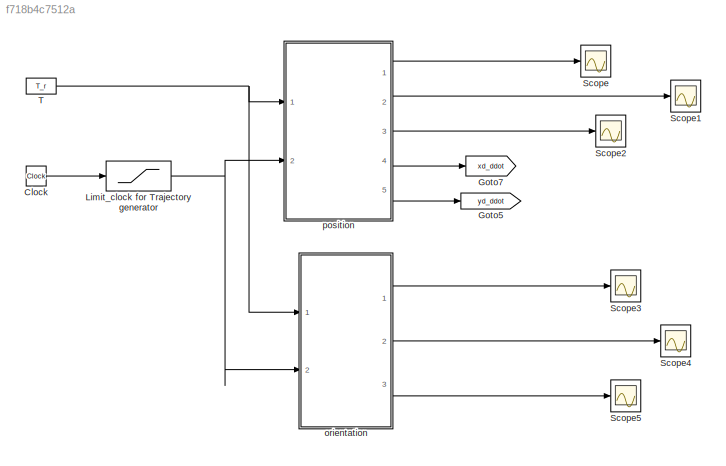
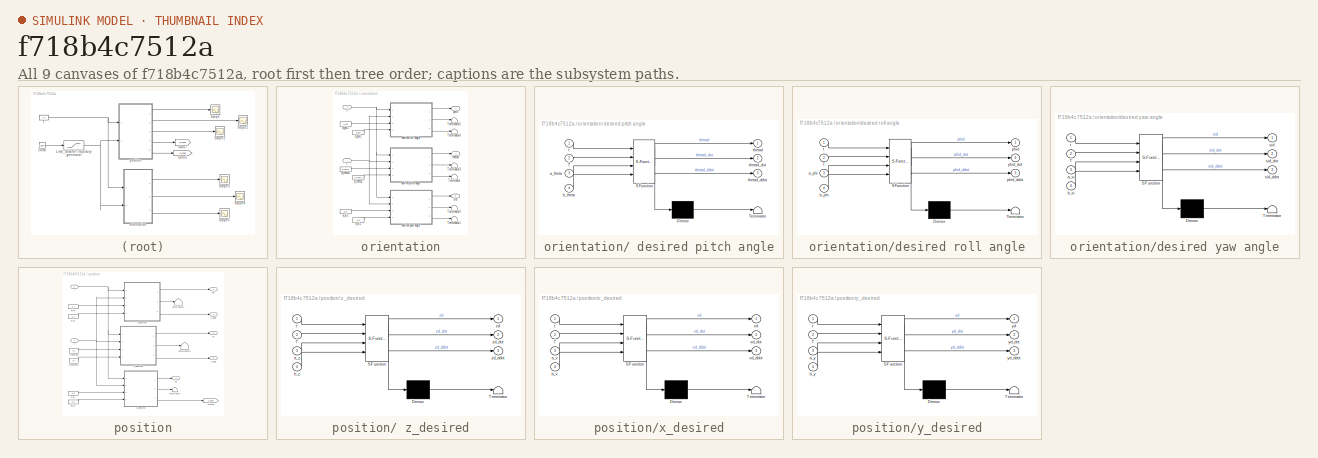
[diagram: thumbnail index - all 9 canvases of the model, root first then tree order]
MODEL slx_f718b4c7512a
KIND model
CONFIG AbsTol = auto
CONFIG EnableMultiTasking = off
CONFIG FixedStep = auto
CONFIG MaxStep = auto
CONFIG MinStep = auto
CONFIG RelTol = 1e-3
CONFIG SampleTimeConstraint = Unconstrained
CONFIG SolverName = VariableStepAuto
CONFIG StartTime = 0.0
CONFIG StopTime = T_s
BLOCK [Clock] Clock
BLOCK [Goto] Goto5
  GotoTag = yd_ddot
  TagVisibility = global
BLOCK [Goto] Goto7
  GotoTag = xd_ddot
  TagVisibility = global
BLOCK [Saturate] Limit_clock for Trajectory generator
  LowerLimit = 0
  UpperLimit = T_s
BLOCK [Scope] Scope
  Floating = off
  NumInputPorts = 1
  Ports = [1]
  ScopeSpecificationString = Simulink.scopes.TimeScopeBlockCfg('CurrentConfiguration', extmgr.ConfigurationSet(extmgr.Configuration('Core','General UI',true),extmgr.Configuration('Core','Source UI',true),extmgr.Configuration('Sources','WiredSimulink',true),extmgr.Configuration('Visuals','Time Domain',true,'SerializedDisplays',{struct('MinYLimReal','-0.25','MaxYLimReal','2.25','YLabelReal','','MinYLimMag','0.00000','MaxYLimMag...<+1313ch>
BLOCK [Scope] Scope1
  Floating = off
  NumInputPorts = 1
  Ports = [1]
  ScopeSpecificationString = Simulink.scopes.TimeScopeBlockCfg('CurrentConfiguration', extmgr.ConfigurationSet(extmgr.Configuration('Core','General UI',true),extmgr.Configuration('Core','Source UI',true),extmgr.Configuration('Sources','WiredSimulink',true,'DataLoggingVariableName','ScopeData1'),extmgr.Configuration('Visuals','Time Domain',true,'SerializedDisplays',{struct('MinYLimReal','-0.25','MaxYLimReal','2.25','YLabelReal...<+1387ch>
BLOCK [Scope] Scope2
  Floating = off
  NumInputPorts = 1
  Ports = [1]
  ScopeSpecificationString = Simulink.scopes.TimeScopeBlockCfg('CurrentConfiguration', extmgr.ConfigurationSet(extmgr.Configuration('Core','General UI',true),extmgr.Configuration('Core','Source UI',true),extmgr.Configuration('Sources','WiredSimulink',true,'DataLoggingVariableName','ScopeData2'),extmgr.Configuration('Visuals','Time Domain',true,'SerializedDisplays',{struct('MinYLimReal','-1.25','MaxYLimReal','11.25','YLabelRea...<+1391ch>
BLOCK [Scope] Scope3
  Floating = off
  NumInputPorts = 1
  Ports = [1]
  ScopeSpecificationString = Simulink.scopes.TimeScopeBlockCfg('CurrentConfiguration', extmgr.ConfigurationSet(extmgr.Configuration('Core','General UI',true),extmgr.Configuration('Core','Source UI',true),extmgr.Configuration('Sources','WiredSimulink',true,'DataLoggingVariableName','ScopeData3'),extmgr.Configuration('Visuals','Time Domain',true),extmgr.Configuration('Tools','Plot Navigation',true),extmgr.Configuration('Tools',...<+40ch>
BLOCK [Scope] Scope4
  Floating = off
  NumInputPorts = 1
  Ports = [1]
  ScopeSpecificationString = Simulink.scopes.TimeScopeBlockCfg('CurrentConfiguration', extmgr.ConfigurationSet(extmgr.Configuration('Core','General UI',true),extmgr.Configuration('Core','Source UI',true),extmgr.Configuration('Sources','WiredSimulink',true,'DataLoggingVariableName','ScopeData4'),extmgr.Configuration('Visuals','Time Domain',true),extmgr.Configuration('Tools','Plot Navigation',true),extmgr.Configuration('Tools',...<+40ch>
BLOCK [Scope] Scope5
  Floating = off
  NumInputPorts = 1
  Ports = [1]
  ScopeSpecificationString = Simulink.scopes.TimeScopeBlockCfg('CurrentConfiguration', extmgr.ConfigurationSet(extmgr.Configuration('Core','General UI',true),extmgr.Configuration('Core','Source UI',true),extmgr.Configuration('Sources','WiredSimulink',true,'DataLoggingVariableName','ScopeData5'),extmgr.Configuration('Visuals','Time Domain',true),extmgr.Configuration('Tools','Plot Navigation',true),extmgr.Configuration('Tools',...<+40ch>
BLOCK [Constant] T
  Value = T_r
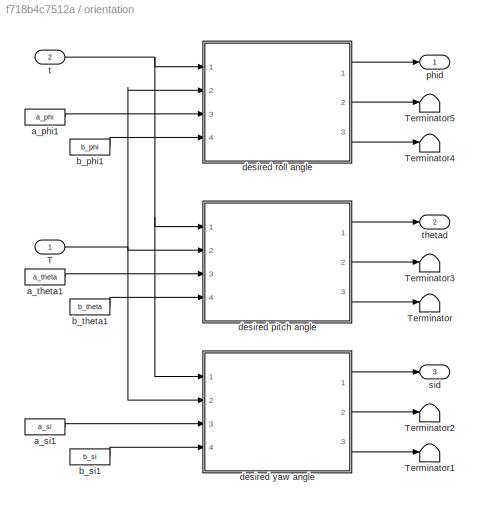
BLOCK [SubSystem] orientation
  Ports = [2, 3]
  RequestExecContextInheritance = off
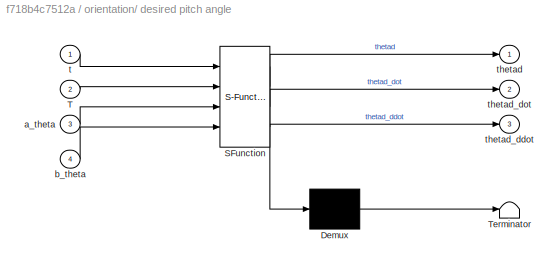
BLOCK [SubSystem] orientation/ desired pitch angle
  ErrorFcn = Stateflow.Translate.translate
  PermitHierarchicalResolution = ExplicitOnly
  Ports = [4, 3]
  RequestExecContextInheritance = off
  SFBlockType = MATLAB Function
  TreatAsAtomicUnit = on
BLOCK [Demux] orientation/ desired pitch angle/ Demux 
  Outputs = 1
  Ports = [1, 1]
BLOCK [S-Function] orientation/ desired pitch angle/ SFunction 
  EnableBusSupport = on
  FunctionName = sf_sfun
  PortCounts = [4 4]
  Ports = [4, 4]
  SFcnIsStateOwnerBlock = off
  SFunctionDeploymentMode = off
  Tag = Stateflow S-Function 3
BLOCK [Terminator] orientation/ desired pitch angle/ Terminator 
BLOCK [Inport] orientation/ desired pitch angle/T
  Port = 2
BLOCK [Inport] orientation/ desired pitch angle/a_theta
  Port = 3
BLOCK [Inport] orientation/ desired pitch angle/b_theta
  Port = 4
BLOCK [Inport] orientation/ desired pitch angle/t
BLOCK [Outport] orientation/ desired pitch angle/thetad
BLOCK [Outport] orientation/ desired pitch angle/thetad_ddot
  Port = 3
BLOCK [Outport] orientation/ desired pitch angle/thetad_dot
  Port = 2
BLOCK [Inport] orientation/T
BLOCK [Terminator] orientation/Terminator
BLOCK [Terminator] orientation/Terminator1
BLOCK [Terminator] orientation/Terminator2
BLOCK [Terminator] orientation/Terminator3
BLOCK [Terminator] orientation/Terminator4
BLOCK [Terminator] orientation/Terminator5
BLOCK [Constant] orientation/a_phi1
  Value = a_phi
BLOCK [Constant] orientation/a_si1
  Value = a_si
BLOCK [Constant] orientation/a_theta1
  Value = a_theta
BLOCK [Constant] orientation/b_phi1
  Value = b_phi
BLOCK [Constant] orientation/b_si1
  Value = b_si
BLOCK [Constant] orientation/b_theta1
  Value = b_theta
BLOCK [SubSystem] orientation/desired roll angle
  ErrorFcn = Stateflow.Translate.translate
  PermitHierarchicalResolution = ExplicitOnly
  Ports = [4, 3]
  RequestExecContextInheritance = off
  SFBlockType = MATLAB Function
  TreatAsAtomicUnit = on
BLOCK [Demux] orientation/desired roll angle/ Demux 
  Outputs = 1
  Ports = [1, 1]
BLOCK [S-Function] orientation/desired roll angle/ SFunction 
  EnableBusSupport = on
  FunctionName = sf_sfun
  PortCounts = [4 4]
  Ports = [4, 4]
  SFcnIsStateOwnerBlock = off
  SFunctionDeploymentMode = off
  Tag = Stateflow S-Function 4
BLOCK [Terminator] orientation/desired roll angle/ Terminator 
BLOCK [Inport] orientation/desired roll angle/T
  Port = 2
BLOCK [Inport] orientation/desired roll angle/a_phi
  Port = 3
BLOCK [Inport] orientation/desired roll angle/b_phi
  Port = 4
BLOCK [Outport] orientation/desired roll angle/phid
BLOCK [Outport] orientation/desired roll angle/phid_ddot
  Port = 3
BLOCK [Outport] orientation/desired roll angle/phid_dot
  Port = 2
BLOCK [Inport] orientation/desired roll angle/t
BLOCK [SubSystem] orientation/desired yaw angle
  ErrorFcn = Stateflow.Translate.translate
  PermitHierarchicalResolution = ExplicitOnly
  Ports = [4, 3]
  RequestExecContextInheritance = off
  SFBlockType = MATLAB Function
  TreatAsAtomicUnit = on
BLOCK [Demux] orientation/desired yaw angle/ Demux 
  Outputs = 1
  Ports = [1, 1]
BLOCK [S-Function] orientation/desired yaw angle/ SFunction 
  EnableBusSupport = on
  FunctionName = sf_sfun
  PortCounts = [4 4]
  Ports = [4, 4]
  SFcnIsStateOwnerBlock = off
  SFunctionDeploymentMode = off
  Tag = Stateflow S-Function 9
BLOCK [Terminator] orientation/desired yaw angle/ Terminator 
BLOCK [Inport] orientation/desired yaw angle/T
  Port = 2
BLOCK [Inport] orientation/desired yaw angle/a_si
  Port = 3
BLOCK [Inport] orientation/desired yaw angle/b_si
  Port = 4
BLOCK [Outport] orientation/desired yaw angle/sid
BLOCK [Outport] orientation/desired yaw angle/sid_ddot
  Port = 3
BLOCK [Outport] orientation/desired yaw angle/sid_dot
  Port = 2
BLOCK [Inport] orientation/desired yaw angle/t
BLOCK [Outport] orientation/phid
BLOCK [Outport] orientation/sid
  Port = 3
BLOCK [Inport] orientation/t
  Port = 2
BLOCK [Outport] orientation/thetad
  Port = 2
BLOCK [SubSystem] position
  Ports = [2, 5]
  RequestExecContextInheritance = off
BLOCK [SubSystem] position/ z_desired
  ErrorFcn = Stateflow.Translate.translate
  PermitHierarchicalResolution = ExplicitOnly
  Ports = [4, 3]
  RequestExecContextInheritance = off
  SFBlockType = MATLAB Function
  TreatAsAtomicUnit = on
BLOCK [Demux] position/ z_desired/ Demux 
  Outputs = 1
  Ports = [1, 1]
BLOCK [S-Function] position/ z_desired/ SFunction 
  EnableBusSupport = on
  FunctionName = sf_sfun
  PortCounts = [4 4]
  Ports = [4, 4]
  SFcnIsStateOwnerBlock = off
  SFunctionDeploymentMode = off
  Tag = Stateflow S-Function 10
BLOCK [Terminator] position/ z_desired/ Terminator 
BLOCK [Inport] position/ z_desired/T
  Port = 2
BLOCK [Inport] position/ z_desired/a_z
  Port = 3
BLOCK [Inport] position/ z_desired/b_z
  Port = 4
BLOCK [Inport] position/ z_desired/t
BLOCK [Outport] position/ z_desired/zd
BLOCK [Outport] position/ z_desired/zd_ddot
  Port = 3
BLOCK [Outport] position/ z_desired/zd_dot
  Port = 2
BLOCK [Constant] position/Constant
  Value = a_y
BLOCK [Constant] position/Constant1
  Value = b_y
BLOCK [Goto] position/Goto8
  GotoTag = z_ddot
  TagVisibility = global
BLOCK [Inport] position/T
BLOCK [Terminator] position/Terminator
BLOCK [Terminator] position/Terminator1
BLOCK [Terminator] position/Terminator3
BLOCK [Constant] position/a_x1
  Value = a_x
BLOCK [Constant] position/a_z1
  Value = a_z
BLOCK [Constant] position/b_x1
  Value = b_x
BLOCK [Constant] position/b_z1
  Value = b_z
BLOCK [Inport] position/t
  Port = 2
BLOCK [Outport] position/x_ddot
  Port = 4
BLOCK [SubSystem] position/x_desired
  ErrorFcn = Stateflow.Translate.translate
  PermitHierarchicalResolution = ExplicitOnly
  Ports = [4, 3]
  RequestExecContextInheritance = off
  SFBlockType = MATLAB Function
  TreatAsAtomicUnit = on
BLOCK [Demux] position/x_desired/ Demux 
  Outputs = 1
  Ports = [1, 1]
BLOCK [S-Function] position/x_desired/ SFunction 
  EnableBusSupport = on
  FunctionName = sf_sfun
  PortCounts = [4 4]
  Ports = [4, 4]
  SFcnIsStateOwnerBlock = off
  SFunctionDeploymentMode = off
  Tag = Stateflow S-Function 11
BLOCK [Terminator] position/x_desired/ Terminator 
BLOCK [Inport] position/x_desired/T
  Port = 2
BLOCK [Inport] position/x_desired/a_x
  Port = 3
BLOCK [Inport] position/x_desired/b_x
  Port = 4
BLOCK [Inport] position/x_desired/t
BLOCK [Outport] position/x_desired/xd
BLOCK [Outport] position/x_desired/xd_ddot
  Port = 3
BLOCK [Outport] position/x_desired/xd_dot
  Port = 2
BLOCK [Outport] position/xd
BLOCK [Outport] position/y_ddot
  Port = 5
BLOCK [SubSystem] position/y_desired
  ErrorFcn = Stateflow.Translate.translate
  PermitHierarchicalResolution = ExplicitOnly
  Ports = [4, 3]
  RequestExecContextInheritance = off
  SFBlockType = MATLAB Function
  TreatAsAtomicUnit = on
BLOCK [Demux] position/y_desired/ Demux 
  Outputs = 1
  Ports = [1, 1]
BLOCK [S-Function] position/y_desired/ SFunction 
  EnableBusSupport = on
  FunctionName = sf_sfun
  PortCounts = [4 4]
  Ports = [4, 4]
  SFcnIsStateOwnerBlock = off
  SFunctionDeploymentMode = off
  Tag = Stateflow S-Function 12
BLOCK [Terminator] position/y_desired/ Terminator 
BLOCK [Inport] position/y_desired/T
  Port = 2
BLOCK [Inport] position/y_desired/a_y
  Port = 3
BLOCK [Inport] position/y_desired/b_y
  Port = 4
BLOCK [Inport] position/y_desired/t
BLOCK [Outport] position/y_desired/yd
BLOCK [Outport] position/y_desired/yd_ddot
  Port = 3
BLOCK [Outport] position/y_desired/yd_dot
  Port = 2
BLOCK [Outport] position/yd
  Port = 2
BLOCK [Outport] position/zd
  Port = 3
LINE Clock:1 -> Limit_clock for Trajectory generator:1
NET Limit_clock for Trajectory generator:1 -> orientation:2, position:2
NET T:1 -> orientation:1, position:1
LINE orientation/ desired pitch angle:1 -> orientation/thetad:1
LINE orientation/ desired pitch angle:2 -> orientation/Terminator3:1
LINE orientation/ desired pitch angle:3 -> orientation/Terminator:1
NET orientation/T:1 -> orientation/ desired pitch angle:2, orientation/desired roll angle:2, orientation/desired yaw angle:2
LINE orientation/a_phi1:1 -> orientation/desired roll angle:3
LINE orientation/a_si1:1 -> orientation/desired yaw angle:3
LINE orientation/a_theta1:1 -> orientation/ desired pitch angle:3
LINE orientation/b_phi1:1 -> orientation/desired roll angle:4
LINE orientation/b_si1:1 -> orientation/desired yaw angle:4
LINE orientation/b_theta1:1 -> orientation/ desired pitch angle:4
LINE orientation/desired roll angle:1 -> orientation/phid:1
LINE orientation/desired roll angle:2 -> orientation/Terminator5:1
LINE orientation/desired roll angle:3 -> orientation/Terminator4:1
LINE orientation/desired yaw angle:1 -> orientation/sid:1
LINE orientation/desired yaw angle:2 -> orientation/Terminator2:1
LINE orientation/desired yaw angle:3 -> orientation/Terminator1:1
NET orientation/t:1 -> orientation/ desired pitch angle:1, orientation/desired roll angle:1, orientation/desired yaw angle:1
LINE orientation:1 -> Scope3:1
LINE orientation:2 -> Scope4:1
LINE orientation:3 -> Scope5:1
LINE position/ z_desired:1 -> position/zd:1
LINE position/ z_desired:2 -> position/Terminator:1
LINE position/ z_desired:3 -> position/Goto8:1
LINE position/Constant1:1 -> position/y_desired:4
LINE position/Constant:1 -> position/y_desired:3
NET position/T:1 -> position/ z_desired:2, position/x_desired:2, position/y_desired:2
LINE position/a_x1:1 -> position/x_desired:3
LINE position/a_z1:1 -> position/ z_desired:3
LINE position/b_x1:1 -> position/x_desired:4
LINE position/b_z1:1 -> position/ z_desired:4
NET position/t:1 -> position/ z_desired:1, position/x_desired:1, position/y_desired:1
LINE position/x_desired:1 -> position/xd:1
LINE position/x_desired:2 -> position/Terminator1:1
LINE position/x_desired:3 -> position/x_ddot:1
LINE position/y_desired:1 -> position/yd:1
LINE position/y_desired:2 -> position/Terminator3:1
LINE position/y_desired:3 -> position/y_ddot:1
LINE position:1 -> Scope:1
LINE position:2 -> Scope1:1
LINE position:3 -> Scope2:1
LINE position:4 -> Goto7:1
LINE position:5 -> Goto5:1
note: NET lines group one-source signal fan-out (src -> all destinations, sorted); 1:1 wires keep LINE
CHART orientation/ desired pitch angle states=1 transitions=1
  STATE_LABEL 'eML_blk_kernel()'
  STATE_LABEL 'SCRIPT:\nfunction [thetad,thetad_dot,thetad_ddot] = fcn(t,T,a_theta,b_theta)\nT0 = 0; % Initialize T0\nTf = 0; % Initialize Tf\na = 0;  % Initialize a\nb = 0;  % Initialize b\n\nfor i = 1:length(T)\n    if (i == 1 && t <= T(i))\n        Tf = T(i);\n        a = a_theta(i);\n        b = b_theta(i);\n        break;\n    elseif (i > 1 && t > T(i-1) && t <= T(i))\n        T0 = T(i-1);\n        Tf = T(i);\n        a = ...<+747ch>'
CHART orientation/desired roll angle states=1 transitions=1
  STATE_LABEL 'eML_blk_kernel()'
  STATE_LABEL 'SCRIPT:\nfunction [phid,phid_dot,phid_ddot] = fcn(t,T,a_phi,b_phi)\nT0 = 0; % Initialize T0\nTf = 0; % Initialize Tf\na = 0;  % Initialize a\nb = 0;  % Initialize b\n\nfor i = 1:length(T)\n    if (i == 1 && t <= T(i))\n        Tf = T(i);\n        a = a_phi(i);\n        b = b_phi(i);\n        break;\n    elseif (i > 1 && t > T(i-1) && t <= T(i))\n        T0 = T(i-1);\n        Tf = T(i);\n        a = a_phi(i);\n    ...<+719ch>'
CHART orientation/desired yaw angle states=1 transitions=1
  STATE_LABEL 'eML_blk_kernel()'
  STATE_LABEL 'SCRIPT:\nfunction [sid,sid_dot,sid_ddot] = fcn(t,T,a_si,b_si)\nT0 = 0; % Initialize T0\nTf = 0; % Initialize Tf\na = 0;  % Initialize a\nb = 0;  % Initialize b\n\nfor i = 1:length(T)\n    if (i == 1 && t <= T(i))\n        Tf = T(i);\n        a = a_si(i);\n        b = b_si(i);\n        break;\n    elseif (i > 1 && t > T(i-1) && t <= T(i))\n        T0 = T(i-1);\n        Tf = T(i);\n        a = a_si(i);\n        b = ...<+705ch>'
CHART position/ z_desired states=1 transitions=1
  STATE_LABEL 'eML_blk_kernel()'
  STATE_LABEL 'SCRIPT:\nfunction [zd,zd_dot,zd_ddot] = fcn(t,T,a_z,b_z)\nT0 = 0; % Initialize T0\nTf = 0; % Initialize Tf\na = 0;  % Initialize a\nb = 0;  % Initialize b\n\nfor i = 1:length(T)\n    if (i == 1 && t <= T(i))\n        Tf = T(i);\n        a = a_z(i);\n        b = b_z(i);\n        break;\n    elseif (i > 1 && t > T(i-1) && t <= T(i))\n        T0 = T(i-1);\n        Tf = T(i);\n        a = a_z(i);\n        b = b_z(i);\n...<+691ch>'
CHART position/x_desired states=1 transitions=1
  STATE_LABEL 'eML_blk_kernel()'
  STATE_LABEL 'SCRIPT:\nfunction [xd,xd_dot,xd_ddot] = fcn(t,T,a_x,b_x)\nT0 = 0; % Initialize T0\nTf = 0; % Initialize Tf\na = 0;  % Initialize a\nb = 0;  % Initialize b\n\nfor i = 1:length(T)\n    if (i == 1 && t <= T(i))\n        Tf = T(i);\n        a = a_x(i);\n        b = b_x(i);\n        break;\n    elseif (i > 1 && t > T(i-1) && t <= T(i))\n        T0 = T(i-1);\n        Tf = T(i);\n        a = a_x(i);\n        b = b_x(i);\n...<+691ch>'
CHART position/y_desired states=1 transitions=1
  STATE_LABEL 'eML_blk_kernel()'
  STATE_LABEL 'SCRIPT:\nfunction [yd,yd_dot,yd_ddot] = fcn(t,T,a_y,b_y)\nT0 = 0; % Initialize T0\nTf = 0; % Initialize Tf\na = 0;  % Initialize a\nb = 0;  % Initialize b\n\nfor i = 1:length(T)\n    if (i == 1 && t <= T(i))\n        Tf = T(i);\n        a = a_y(i);\n        b = b_y(i);\n        break;\n    elseif (i > 1 && t > T(i-1) && t <= T(i))\n        T0 = T(i-1);\n        Tf = T(i);\n        a = a_y(i);\n        b = b_y(i);\n...<+691ch>'
CHART  states=0 transitions=0
CHART  states=0 transitions=0
CHART  states=0 transitions=0
CHART  states=0 transitions=0
CHART  states=0 transitions=0
CHART  states=0 transitions=0
